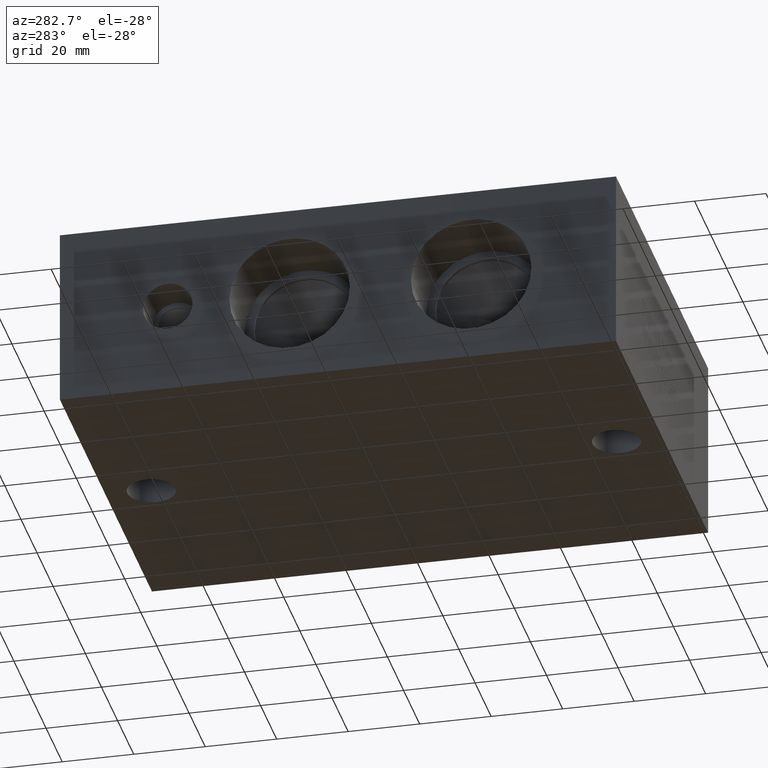
[diagram: clean part render]
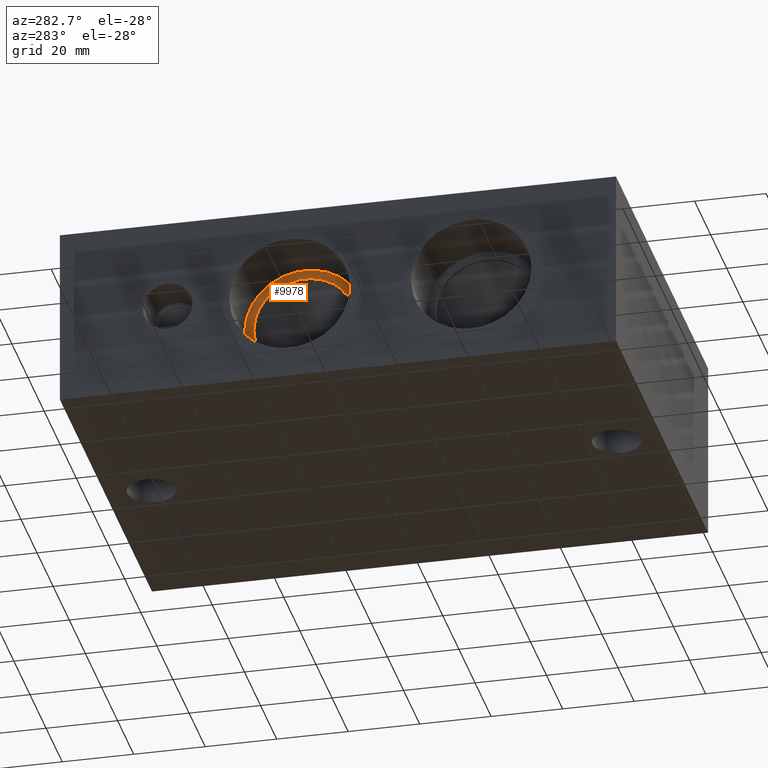
[diagram: same view with one face highlighted and labeled with its STEP entity id]
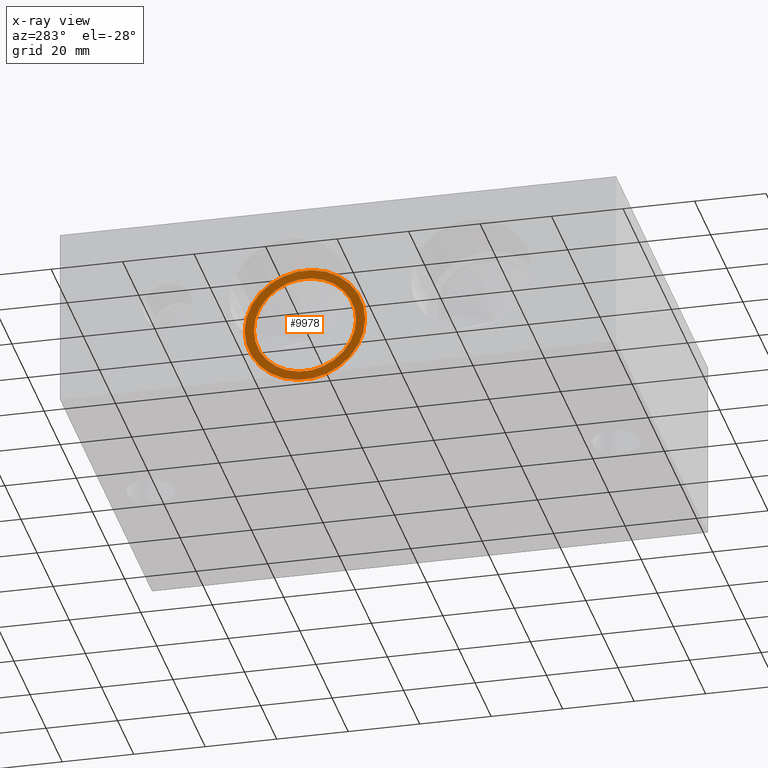
[diagram: x-ray of the same camera — body ghosted, the highlighted face saturated]
A machine part, auxiliary view. The second image highlights one B-rep face of the part: STEP entity #9978.
The next image is the same camera in x-ray: the body ghosted, the highlighted face saturated — about 0% of this face is hidden behind the body in this view.
In plain terms, the highlighted planar face has unit normal (-1, 0, 0).
Its self-contained STEP definition (entity closure, byte-faithful):
#99=CIRCLE('',#10382,16.8529);
#100=CIRCLE('',#10383,16.8529);
#101=CIRCLE('',#10384,14.2875);
#248=FACE_BOUND('',#1591,.T.);
#564=PLANE('',#10381);
#1029=FACE_OUTER_BOUND('',#1590,.T.);
#1590=EDGE_LOOP('',(#8635,#8636));
#1591=EDGE_LOOP('',(#8637));
#4709=VERTEX_POINT('',#16942);
#4710=VERTEX_POINT('',#16943);
#4711=VERTEX_POINT('',#16946);
#6055=EDGE_CURVE('',#4709,#4710,#99,.T.);
#6056=EDGE_CURVE('',#4710,#4709,#100,.T.);
#6057=EDGE_CURVE('',#4711,#4711,#101,.T.);
#8635=ORIENTED_EDGE('',*,*,#6055,.T.);
#8636=ORIENTED_EDGE('',*,*,#6056,.T.);
#8637=ORIENTED_EDGE('',*,*,#6057,.F.);
#9978=ADVANCED_FACE('',(#1029,#248),#564,.T.);
#10381=AXIS2_PLACEMENT_3D('',#16941,#12097,#12098);
#10382=AXIS2_PLACEMENT_3D('',#16944,#12099,#12100);
#10383=AXIS2_PLACEMENT_3D('',#16945,#12101,#12102);
#10384=AXIS2_PLACEMENT_3D('',#16947,#12103,#12104);
#12097=DIRECTION('center_axis',(-1.,0.,0.));
#12098=DIRECTION('ref_axis',(0.,1.,0.));
#12099=DIRECTION('center_axis',(-1.,0.,0.));
#12100=DIRECTION('ref_axis',(0.,1.,0.));
#12101=DIRECTION('center_axis',(-1.,0.,0.));
#12102=DIRECTION('ref_axis',(0.,1.,0.));
#12103=DIRECTION('center_axis',(-1.,0.,0.));
#12104=DIRECTION('ref_axis',(0.,1.,0.));
#16941=CARTESIAN_POINT('Origin',(18.9992,91.313,25.4));
#16942=CARTESIAN_POINT('',(18.9992,108.1659,25.4));
#16943=CARTESIAN_POINT('',(18.9992,74.4601,25.4));
#16944=CARTESIAN_POINT('Origin',(18.9992,91.313,25.4));
#16945=CARTESIAN_POINT('Origin',(18.9992,91.313,25.4));
#16946=CARTESIAN_POINT('',(18.9992,77.0255,25.4));
#16947=CARTESIAN_POINT('Origin',(18.9992,91.313,25.4));